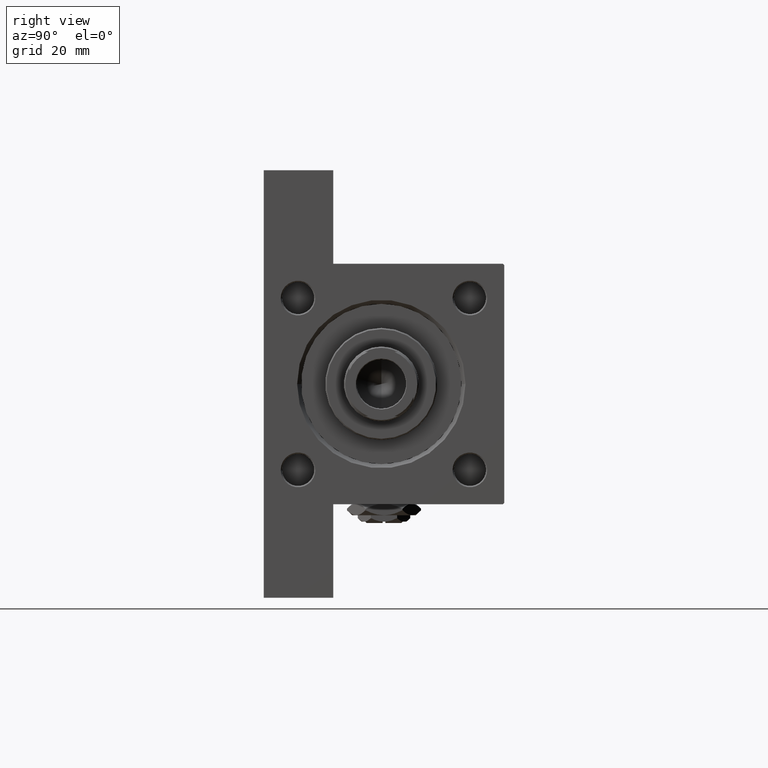
[diagram: clean part render]
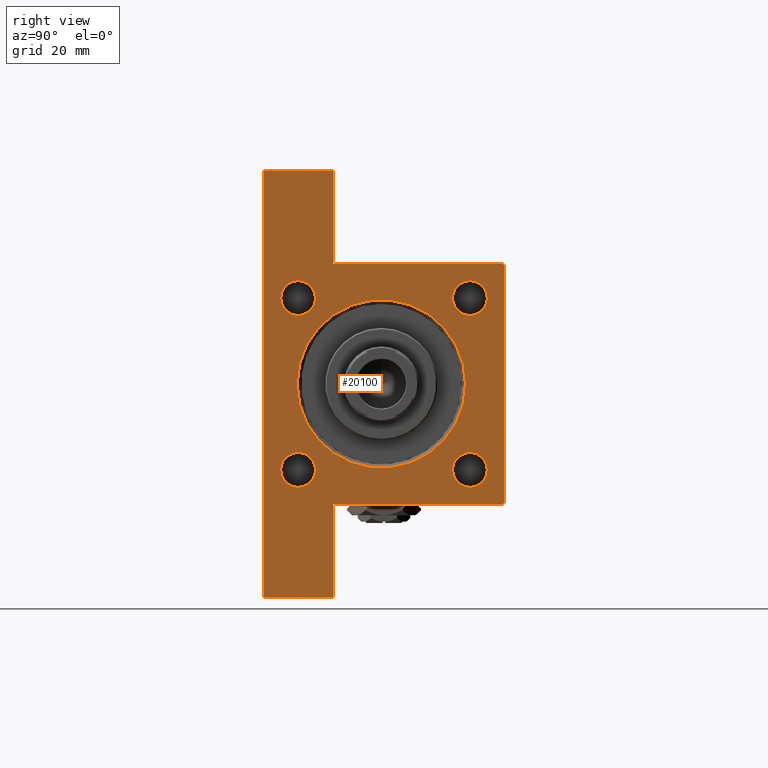
[diagram: same view with one face highlighted and labeled with its STEP entity id]
A machine part, right view. The second image highlights one B-rep face of the part: STEP entity #20100.
In plain terms, the highlighted planar face has unit normal (-1, 0, -0).
Its self-contained STEP definition (entity closure, byte-faithful):
#191 = EDGE_CURVE ( 'NONE', #5577, #7149, #4186, .T. ) ;
#277 = CARTESIAN_POINT ( 'NONE',  ( 155.0000000000000000, 45.00000000000001421, 45.00000000000000000 ) ) ;
#369 = ORIENTED_EDGE ( 'NONE', *, *, #24062, .T. ) ;
#549 = VERTEX_POINT ( 'NONE', #1976 ) ;
#1230 = CARTESIAN_POINT ( 'NONE',  ( 155.0000000000000000, 32.14999999999999147, -25.64999999999999858 ) ) ;
#1711 = CARTESIAN_POINT ( 'NONE',  ( 155.0000000000000000, 0.000000000000000000, -32.50000000000000000 ) ) ;
#1976 = CARTESIAN_POINT ( 'NONE',  ( 155.0000000000000000, 45.00000000000001421, 44.50000000000000000 ) ) ;
#2353 = AXIS2_PLACEMENT_3D ( 'NONE', #44332, #24240, #9148 ) ;
#2388 = AXIS2_PLACEMENT_3D ( 'NONE', #3139, #49144, #8169 ) ;
#2463 = VECTOR ( 'NONE', #28969, 1000.000000000000000 ) ;
#2990 = FACE_BOUND ( 'NONE', #37268, .T. ) ;
#3139 = CARTESIAN_POINT ( 'NONE',  ( 155.0000000000000000, -32.15000000000001279, -32.15000000000000568 ) ) ;
#3277 = DIRECTION ( 'NONE',  ( -1.000000000000000000, -0.000000000000000000, -0.000000000000000000 ) ) ;
#3431 = DIRECTION ( 'NONE',  ( 0.000000000000000000, -1.000000000000000000, -1.541976423090495140E-16 ) ) ;
#3882 = ORIENTED_EDGE ( 'NONE', *, *, #37400, .T. ) ;
#4186 = CIRCLE ( 'NONE', #8215, 6.500000000000005329 ) ;
#4495 = DIRECTION ( 'NONE',  ( 0.000000000000000000, 0.000000000000000000, 1.000000000000000000 ) ) ;
#5082 = CARTESIAN_POINT ( 'NONE',  ( 155.0000000000000000, -44.99999999999999289, -18.99999999999997513 ) ) ;
#5509 = CARTESIAN_POINT ( 'NONE',  ( 155.0000000000000000, 32.14999999999999147, 25.64999999999999858 ) ) ;
#5577 = VERTEX_POINT ( 'NONE', #24477 ) ;
#5956 = LINE ( 'NONE', #13012, #21978 ) ;
#6431 = DIRECTION ( 'NONE',  ( 0.000000000000000000, 0.000000000000000000, 1.000000000000000000 ) ) ;
#6511 = FACE_BOUND ( 'NONE', #30916, .T. ) ;
#6854 = VERTEX_POINT ( 'NONE', #5082 ) ;
#6949 = AXIS2_PLACEMENT_3D ( 'NONE', #45125, #33068, #37080 ) ;
#6962 = DIRECTION ( 'NONE',  ( 0.000000000000000000, 0.000000000000000000, 1.000000000000000000 ) ) ;
#7149 = VERTEX_POINT ( 'NONE', #5509 ) ;
#7207 = CIRCLE ( 'NONE', #36103, 6.500000000000005329 ) ;
#7683 = ORIENTED_EDGE ( 'NONE', *, *, #28432, .T. ) ;
#7832 = VERTEX_POINT ( 'NONE', #14659 ) ;
#7876 = CARTESIAN_POINT ( 'NONE',  ( 155.0000000000000000, -45.00000000000000000, 44.49999999999998579 ) ) ;
#8169 = DIRECTION ( 'NONE',  ( 0.000000000000000000, 0.000000000000000000, 1.000000000000000000 ) ) ;
#8215 = AXIS2_PLACEMENT_3D ( 'NONE', #10562, #3277, #37233 ) ;
#8397 = DIRECTION ( 'NONE',  ( 0.000000000000000000, -0.7071067811865474617, 0.7071067811865474617 ) ) ;
#9148 = DIRECTION ( 'NONE',  ( 0.000000000000000000, 0.000000000000000000, 1.000000000000000000 ) ) ;
#9273 = CARTESIAN_POINT ( 'NONE',  ( 154.9999999999999716, -80.00000000000002842, -45.00000000000000000 ) ) ;
#9743 = EDGE_CURVE ( 'NONE', #7832, #46492, #31192, .T. ) ;
#9915 = AXIS2_PLACEMENT_3D ( 'NONE', #31150, #12022, #35162 ) ;
#10194 = CARTESIAN_POINT ( 'NONE',  ( 155.0000000000000000, -32.14999999999999147, 32.14999999999999147 ) ) ;
#10414 = ORIENTED_EDGE ( 'NONE', *, *, #33280, .T. ) ;
#10562 = CARTESIAN_POINT ( 'NONE',  ( 155.0000000000000000, 32.14999999999999147, 32.15000000000000568 ) ) ;
#10710 = LINE ( 'NONE', #22277, #35673 ) ;
#10727 = DIRECTION ( 'NONE',  ( -1.000000000000000000, -0.000000000000000000, -0.000000000000000000 ) ) ;
#10775 = CARTESIAN_POINT ( 'NONE',  ( 155.0000000000000000, 0.000000000000000000, 0.000000000000000000 ) ) ;
#11010 = EDGE_CURVE ( 'NONE', #20006, #29933, #14925, .T. ) ;
#11035 = EDGE_LOOP ( 'NONE', ( #33439, #13231, #19422, #36535, #21622, #11589, #16875, #41171, #41283, #39300 ) ) ;
#11185 = VECTOR ( 'NONE', #27426, 1000.000000000000000 ) ;
#11474 = LINE ( 'NONE', #34116, #27318 ) ;
#11504 = LINE ( 'NONE', #39340, #28845 ) ;
#11589 = ORIENTED_EDGE ( 'NONE', *, *, #31753, .T. ) ;
#11998 = VECTOR ( 'NONE', #8397, 1000.000000000000114 ) ;
#12022 = DIRECTION ( 'NONE',  ( -1.000000000000000000, -0.000000000000000000, -0.000000000000000000 ) ) ;
#12766 = CIRCLE ( 'NONE', #2353, 31.50000000000000000 ) ;
#12824 = VERTEX_POINT ( 'NONE', #7876 ) ;
#13012 = CARTESIAN_POINT ( 'NONE',  ( 155.0000000000000000, -45.00000000000000000, 44.99999999999998579 ) ) ;
#13231 = ORIENTED_EDGE ( 'NONE', *, *, #21085, .T. ) ;
#13980 = VERTEX_POINT ( 'NONE', #39335 ) ;
#14462 = EDGE_CURVE ( 'NONE', #20006, #7832, #36242, .T. ) ;
#14471 = VECTOR ( 'NONE', #27406, 1000.000000000000000 ) ;
#14659 = CARTESIAN_POINT ( 'NONE',  ( 155.0000000000000000, 80.00000000000000000, -45.00000000000000000 ) ) ;
#14910 = ORIENTED_EDGE ( 'NONE', *, *, #40630, .T. ) ;
#14925 = LINE ( 'NONE', #18214, #30466 ) ;
#16260 = CARTESIAN_POINT ( 'NONE',  ( 155.0000000000000000, -32.14999999999999147, 38.64999999999999858 ) ) ;
#16875 = ORIENTED_EDGE ( 'NONE', *, *, #23956, .T. ) ;
#16911 = CARTESIAN_POINT ( 'NONE',  ( 154.9999999999999716, -80.00000000000002842, -19.00000000000000000 ) ) ;
#17041 = AXIS2_PLACEMENT_3D ( 'NONE', #10194, #40877, #6431 ) ;
#17129 = CARTESIAN_POINT ( 'NONE',  ( 155.0000000000000000, 80.00000000000000000, -19.00000000000000000 ) ) ;
#17277 = DIRECTION ( 'NONE',  ( 0.000000000000000000, 7.709882115452478166E-17, -1.000000000000000000 ) ) ;
#17410 = CARTESIAN_POINT ( 'NONE',  ( 155.0000000000000000, -32.15000000000001279, -38.65000000000001990 ) ) ;
#18214 = CARTESIAN_POINT ( 'NONE',  ( 155.0000000000000000, 80.00000000000000000, -19.00000000000000000 ) ) ;
#18944 = CARTESIAN_POINT ( 'NONE',  ( 155.0000000000000000, 80.00000000000000000, -19.00000000000000000 ) ) ;
#19422 = ORIENTED_EDGE ( 'NONE', *, *, #41543, .T. ) ;
#19458 = DIRECTION ( 'NONE',  ( 0.000000000000000000, 0.000000000000000000, 1.000000000000000000 ) ) ;
#20006 = VERTEX_POINT ( 'NONE', #18944 ) ;
#20100 = ADVANCED_FACE ( 'NONE', ( #49250, #2990, #6511, #44728, #22336, #25862 ), #48996, .F. ) ;
#20239 = VECTOR ( 'NONE', #47549, 1000.000000000000000 ) ;
#21043 = CIRCLE ( 'NONE', #17041, 6.500000000000005329 ) ;
#21085 = EDGE_CURVE ( 'NONE', #549, #46967, #47326, .T. ) ;
#21622 = ORIENTED_EDGE ( 'NONE', *, *, #41482, .T. ) ;
#21978 = VECTOR ( 'NONE', #17277, 1000.000000000000000 ) ;
#22242 = CARTESIAN_POINT ( 'NONE',  ( 155.0000000000000000, 3.857637417314162689E-15, 30.50000000000000000 ) ) ;
#22277 = CARTESIAN_POINT ( 'NONE',  ( 155.0000000000000000, 45.00000000000001421, 45.00000000000000000 ) ) ;
#22336 = FACE_BOUND ( 'NONE', #23414, .T. ) ;
#22615 = VERTEX_POINT ( 'NONE', #17410 ) ;
#23130 = VERTEX_POINT ( 'NONE', #22242 ) ;
#23236 = EDGE_CURVE ( 'NONE', #22615, #24467, #24089, .T. ) ;
#23386 = CARTESIAN_POINT ( 'NONE',  ( 155.0000000000000000, 45.00000000000001421, -45.00000000000000000 ) ) ;
#23414 = EDGE_LOOP ( 'NONE', ( #43804, #369 ) ) ;
#23956 = EDGE_CURVE ( 'NONE', #33933, #46492, #11504, .T. ) ;
#24062 = EDGE_CURVE ( 'NONE', #23130, #48142, #12766, .T. ) ;
#24089 = CIRCLE ( 'NONE', #2388, 6.500000000000005329 ) ;
#24240 = DIRECTION ( 'NONE',  ( -1.000000000000000000, -0.000000000000000000, -0.000000000000000000 ) ) ;
#24467 = VERTEX_POINT ( 'NONE', #26650 ) ;
#24477 = CARTESIAN_POINT ( 'NONE',  ( 155.0000000000000000, 32.14999999999999147, 38.65000000000001279 ) ) ;
#24691 = CARTESIAN_POINT ( 'NONE',  ( 155.0000000000000000, 44.50000000000001421, 45.00000000000000000 ) ) ;
#25862 = FACE_OUTER_BOUND ( 'NONE', #11035, .T. ) ;
#26650 = CARTESIAN_POINT ( 'NONE',  ( 155.0000000000000000, -32.15000000000001279, -25.64999999999999858 ) ) ;
#26789 = CARTESIAN_POINT ( 'NONE',  ( 154.9999999999999716, -80.00000000000002842, -19.00000000000000000 ) ) ;
#26884 = CARTESIAN_POINT ( 'NONE',  ( 155.0000000000000000, 32.14999999999999147, 32.15000000000000568 ) ) ;
#26897 = CARTESIAN_POINT ( 'NONE',  ( 155.0000000000000000, 32.14999999999999147, -32.15000000000000568 ) ) ;
#27318 = VECTOR ( 'NONE', #30099, 1000.000000000000114 ) ;
#27349 = CARTESIAN_POINT ( 'NONE',  ( 155.0000000000000000, -32.14999999999999147, 25.64999999999998437 ) ) ;
#27406 = DIRECTION ( 'NONE',  ( 0.000000000000000000, -1.000000000000000000, 0.000000000000000000 ) ) ;
#27426 = DIRECTION ( 'NONE',  ( 0.000000000000000000, 0.000000000000000000, -1.000000000000000000 ) ) ;
#27754 = EDGE_CURVE ( 'NONE', #549, #29933, #34976, .T. ) ;
#28384 = CIRCLE ( 'NONE', #9915, 6.500000000000005329 ) ;
#28432 = EDGE_CURVE ( 'NONE', #24467, #22615, #7207, .T. ) ;
#28845 = VECTOR ( 'NONE', #49474, 1000.000000000000000 ) ;
#28969 = DIRECTION ( 'NONE',  ( 7.930164461608253537E-16, -1.000000000000000000, -0.000000000000000000 ) ) ;
#29450 = EDGE_CURVE ( 'NONE', #36020, #12824, #11474, .T. ) ;
#29598 = CARTESIAN_POINT ( 'NONE',  ( 155.0000000000000000, 32.14999999999999147, -32.15000000000000568 ) ) ;
#29859 = CIRCLE ( 'NONE', #42714, 6.500000000000005329 ) ;
#29933 = VERTEX_POINT ( 'NONE', #31416 ) ;
#30099 = DIRECTION ( 'NONE',  ( -0.000000000000000000, -0.7071067811865474617, -0.7071067811865474617 ) ) ;
#30466 = VECTOR ( 'NONE', #34068, 1000.000000000000000 ) ;
#30916 = EDGE_LOOP ( 'NONE', ( #39884, #7683 ) ) ;
#31150 = CARTESIAN_POINT ( 'NONE',  ( 155.0000000000000000, -32.14999999999999147, 32.14999999999999147 ) ) ;
#31192 = LINE ( 'NONE', #23386, #14471 ) ;
#31416 = CARTESIAN_POINT ( 'NONE',  ( 154.9999999999999432, 44.99999999999998579, -19.00000000000000000 ) ) ;
#31636 = CIRCLE ( 'NONE', #38054, 6.500000000000005329 ) ;
#31753 = EDGE_CURVE ( 'NONE', #6854, #33933, #36022, .T. ) ;
#31765 = AXIS2_PLACEMENT_3D ( 'NONE', #10775, #47566, #37684 ) ;
#32538 = CARTESIAN_POINT ( 'NONE',  ( 155.0000000000000000, 44.50000000000001421, 45.00000000000000000 ) ) ;
#33068 = DIRECTION ( 'NONE',  ( -1.000000000000000000, -0.000000000000000000, -0.000000000000000000 ) ) ;
#33280 = EDGE_CURVE ( 'NONE', #37563, #13980, #29859, .T. ) ;
#33439 = ORIENTED_EDGE ( 'NONE', *, *, #27754, .F. ) ;
#33910 = EDGE_CURVE ( 'NONE', #49254, #46635, #21043, .T. ) ;
#33933 = VERTEX_POINT ( 'NONE', #26789 ) ;
#34068 = DIRECTION ( 'NONE',  ( -1.586032892321651496E-15, -1.000000000000000000, 0.000000000000000000 ) ) ;
#34116 = CARTESIAN_POINT ( 'NONE',  ( 155.0000000000000000, -45.00000000000000000, 44.49999999999998579 ) ) ;
#34976 = LINE ( 'NONE', #277, #11185 ) ;
#35052 = DIRECTION ( 'NONE',  ( -1.000000000000000000, -0.000000000000000000, -0.000000000000000000 ) ) ;
#35162 = DIRECTION ( 'NONE',  ( 0.000000000000000000, 0.000000000000000000, 1.000000000000000000 ) ) ;
#35288 = CARTESIAN_POINT ( 'NONE',  ( 155.0000000000000000, -32.15000000000001279, -32.15000000000000568 ) ) ;
#35673 = VECTOR ( 'NONE', #3431, 1000.000000000000000 ) ;
#36020 = VERTEX_POINT ( 'NONE', #48566 ) ;
#36022 = LINE ( 'NONE', #16911, #2463 ) ;
#36103 = AXIS2_PLACEMENT_3D ( 'NONE', #35288, #35052, #19458 ) ;
#36242 = LINE ( 'NONE', #17129, #20239 ) ;
#36535 = ORIENTED_EDGE ( 'NONE', *, *, #29450, .T. ) ;
#37080 = DIRECTION ( 'NONE',  ( 0.000000000000000000, 0.000000000000000000, 1.000000000000000000 ) ) ;
#37233 = DIRECTION ( 'NONE',  ( 0.000000000000000000, 0.000000000000000000, 1.000000000000000000 ) ) ;
#37268 = EDGE_LOOP ( 'NONE', ( #14910, #43149 ) ) ;
#37400 = EDGE_CURVE ( 'NONE', #13980, #37563, #31636, .T. ) ;
#37426 = AXIS2_PLACEMENT_3D ( 'NONE', #26884, #38959, #4495 ) ;
#37563 = VERTEX_POINT ( 'NONE', #1230 ) ;
#37684 = DIRECTION ( 'NONE',  ( -0.000000000000000000, 0.000000000000000000, 1.000000000000000000 ) ) ;
#38054 = AXIS2_PLACEMENT_3D ( 'NONE', #26897, #38474, #41727 ) ;
#38474 = DIRECTION ( 'NONE',  ( -1.000000000000000000, -0.000000000000000000, -0.000000000000000000 ) ) ;
#38959 = DIRECTION ( 'NONE',  ( -1.000000000000000000, -0.000000000000000000, -0.000000000000000000 ) ) ;
#39300 = ORIENTED_EDGE ( 'NONE', *, *, #11010, .T. ) ;
#39335 = CARTESIAN_POINT ( 'NONE',  ( 155.0000000000000000, 32.14999999999999147, -38.65000000000001990 ) ) ;
#39340 = CARTESIAN_POINT ( 'NONE',  ( 154.9999999999999716, -80.00000000000002842, -19.00000000000000000 ) ) ;
#39884 = ORIENTED_EDGE ( 'NONE', *, *, #23236, .T. ) ;
#40630 = EDGE_CURVE ( 'NONE', #46635, #49254, #28384, .T. ) ;
#40683 = CIRCLE ( 'NONE', #6949, 31.50000000000000000 ) ;
#40877 = DIRECTION ( 'NONE',  ( -1.000000000000000000, -0.000000000000000000, -0.000000000000000000 ) ) ;
#41171 = ORIENTED_EDGE ( 'NONE', *, *, #9743, .F. ) ;
#41283 = ORIENTED_EDGE ( 'NONE', *, *, #14462, .F. ) ;
#41482 = EDGE_CURVE ( 'NONE', #12824, #6854, #5956, .T. ) ;
#41543 = EDGE_CURVE ( 'NONE', #46967, #36020, #10710, .T. ) ;
#41719 = EDGE_LOOP ( 'NONE', ( #46076, #49136 ) ) ;
#41727 = DIRECTION ( 'NONE',  ( 0.000000000000000000, 0.000000000000000000, 1.000000000000000000 ) ) ;
#42714 = AXIS2_PLACEMENT_3D ( 'NONE', #29598, #10727, #6962 ) ;
#42998 = EDGE_LOOP ( 'NONE', ( #3882, #10414 ) ) ;
#43149 = ORIENTED_EDGE ( 'NONE', *, *, #33910, .T. ) ;
#43804 = ORIENTED_EDGE ( 'NONE', *, *, #48528, .T. ) ;
#43838 = CIRCLE ( 'NONE', #37426, 6.500000000000005329 ) ;
#44332 = CARTESIAN_POINT ( 'NONE',  ( 155.0000000000000000, 0.000000000000000000, -1.000000000000000888 ) ) ;
#44728 = FACE_BOUND ( 'NONE', #42998, .T. ) ;
#45125 = CARTESIAN_POINT ( 'NONE',  ( 155.0000000000000000, 0.000000000000000000, -1.000000000000000888 ) ) ;
#46076 = ORIENTED_EDGE ( 'NONE', *, *, #47008, .T. ) ;
#46492 = VERTEX_POINT ( 'NONE', #9273 ) ;
#46635 = VERTEX_POINT ( 'NONE', #27349 ) ;
#46967 = VERTEX_POINT ( 'NONE', #32538 ) ;
#47008 = EDGE_CURVE ( 'NONE', #7149, #5577, #43838, .T. ) ;
#47326 = LINE ( 'NONE', #24691, #11998 ) ;
#47549 = DIRECTION ( 'NONE',  ( 0.000000000000000000, 0.000000000000000000, -1.000000000000000000 ) ) ;
#47566 = DIRECTION ( 'NONE',  ( -1.000000000000000000, 0.000000000000000000, -0.000000000000000000 ) ) ;
#48142 = VERTEX_POINT ( 'NONE', #1711 ) ;
#48528 = EDGE_CURVE ( 'NONE', #48142, #23130, #40683, .T. ) ;
#48566 = CARTESIAN_POINT ( 'NONE',  ( 155.0000000000000000, -44.49999999999997158, 44.99999999999998579 ) ) ;
#48996 = PLANE ( 'NONE',  #31765 ) ;
#49136 = ORIENTED_EDGE ( 'NONE', *, *, #191, .T. ) ;
#49144 = DIRECTION ( 'NONE',  ( -1.000000000000000000, -0.000000000000000000, -0.000000000000000000 ) ) ;
#49250 = FACE_BOUND ( 'NONE', #41719, .T. ) ;
#49254 = VERTEX_POINT ( 'NONE', #16260 ) ;
#49474 = DIRECTION ( 'NONE',  ( 0.000000000000000000, 0.000000000000000000, -1.000000000000000000 ) ) ;